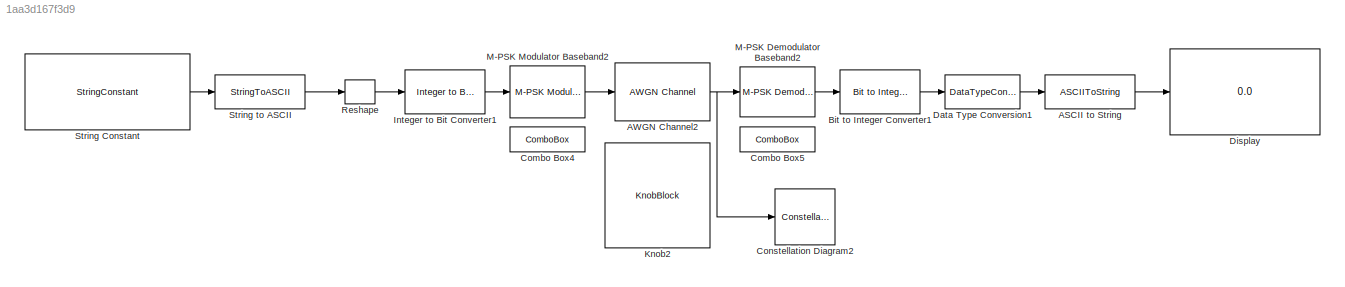
MODEL slx_1aa3d167f3d9
KIND model
CONFIG AbsTol = auto
CONFIG EnableMultiTasking = off
CONFIG FixedStep = auto
CONFIG MaxStep = auto
CONFIG MinStep = auto
CONFIG RelTol = 1e-3
CONFIG SampleTimeConstraint = Unconstrained
CONFIG SolverName = VariableStepAuto
CONFIG StartTime = 0.0
CONFIG StopTime = Inf
BLOCK [ASCIIToString] ASCII to String
BLOCK [Reference] AWGN Channel2  REF=commchan3/AWGN
Channel
  SourceBlock = commchan3/AWGN\nChannel
  SourceType = AWGN Channel
  UserDataPersistent = on
BLOCK [Reference] Bit to Integer Converter1  REF=simulink/Logic and Bit
Operations/Bit to Integer
Converter
  SourceBlock = simulink/Logic and Bit\nOperations/Bit to Integer\nConverter
  SourceType = Bit to Integer Converter
BLOCK [ComboBox] Combo Box4
  LabelPosition = Hide
  SelectedLabel = M=2
BLOCK [ComboBox] Combo Box5
  LabelPosition = Hide
  SelectedLabel = M=2
BLOCK [ConstellationDiagram] Constellation Diagram2
  AxesLimits = [-1.7976 1.7946]
  DefaultConfigurationName = comm.scopes.ConstellationDiagramBlockCfg
  GraphicalSettings = {"GraphicalSettings":{"Style":{"AuxLineProperties":"struct","AxesProperties":"struct","Color":"[1 1 0.0666666666666667]","CurrentConfiguration":"extmgr.ConfigurationSet","GrReferenceConstellation":"BPSK","LineColor":"[1 1 0.0666666666666667]","LineProperties":"struct","LineStyle":"-","LineWidth":"0.5","Marker":".","MarkerEdgeColor":"auto","MarkerFaceColor":"none","MarkerSize":"6","MaxXLim":"1.7946...<+705ch>
  ReferenceConstellation = BPSK
  ScopeFrameLocation = window
  ScopeSpecificationString = comm.scopes.ConstellationDiagramBlockCfg('CurrentConfiguration', extmgr.ConfigurationSet(extmgr.Configuration('Core','General UI',true),extmgr.Configuration('Core','Source UI',true),extmgr.Configuration('Sources','WiredSimulink',true),extmgr.Configuration('Sources','SPTool',false),extmgr.Configuration('Sources','File',false),extmgr.Configuration('Sources','Workspace',false),extmgr.Configuration('S...<+2407ch>
  Visible = on
  WasSavedAsWebScope = on
  WindowPosition = [1638.000000,865.000000,710.000000,481.000000,]
  XLimits = [-1.7976 1.7946]
  YLimits = [-1.7976 1.7946]
BLOCK [DataTypeConversion] Data Type Conversion1
  OutDataTypeStr = uint8
  RndMeth = Floor
  SaturateOnIntegerOverflow = off
BLOCK [Display] Display
  Decimation = 1
BLOCK [Reference] Integer to Bit Converter1  REF=simulink/Logic and Bit
Operations/Integer to Bit
Converter
  SourceBlock = simulink/Logic and Bit\nOperations/Integer to Bit\nConverter
  SourceType = Integer to Bit Converter
BLOCK [KnobBlock] Knob2
  ScaleMax = 50
  ScaleMin = -50
BLOCK [Reference] M-PSK Demodulator Baseband2  REF=commdigbbndpm3/M-PSK
Demodulator
Baseband
  SourceBlock = commdigbbndpm3/M-PSK\nDemodulator\nBaseband
  SourceType = M-PSK Demodulator Baseband
BLOCK [Reference] M-PSK Modulator Baseband2  REF=commdigbbndpm3/M-PSK
Modulator
Baseband
  SourceBlock = commdigbbndpm3/M-PSK\nModulator\nBaseband
  SourceType = M-PSK Modulator Baseband
BLOCK [Reshape] Reshape
BLOCK [StringConstant] String Constant
  String = "¿Hay vida más allá de TC?"
BLOCK [StringToASCII] String to ASCII
  OutputVectorSize = 16*3
LINE ASCII to String:1 -> Display:1
NET AWGN Channel2:1 -> Constellation Diagram2:1, M-PSK Demodulator Baseband2:1
LINE Bit to Integer Converter1:1 -> Data Type Conversion1:1
LINE Data Type Conversion1:1 -> ASCII to String:1
LINE Integer to Bit Converter1:1 -> M-PSK Modulator Baseband2:1
LINE M-PSK Demodulator Baseband2:1 -> Bit to Integer Converter1:1
LINE M-PSK Modulator Baseband2:1 -> AWGN Channel2:1
LINE Reshape:1 -> Integer to Bit Converter1:1
LINE String Constant:1 -> String to ASCII:1
LINE String to ASCII:1 -> Reshape:1
note: NET lines group one-source signal fan-out (src -> all destinations, sorted); 1:1 wires keep LINE
